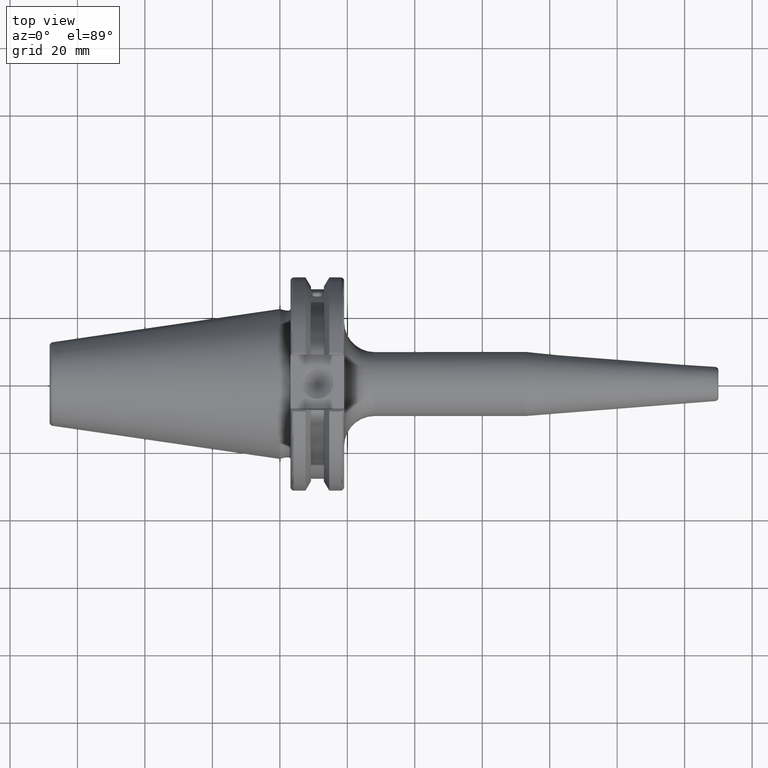
[diagram: clean part render]
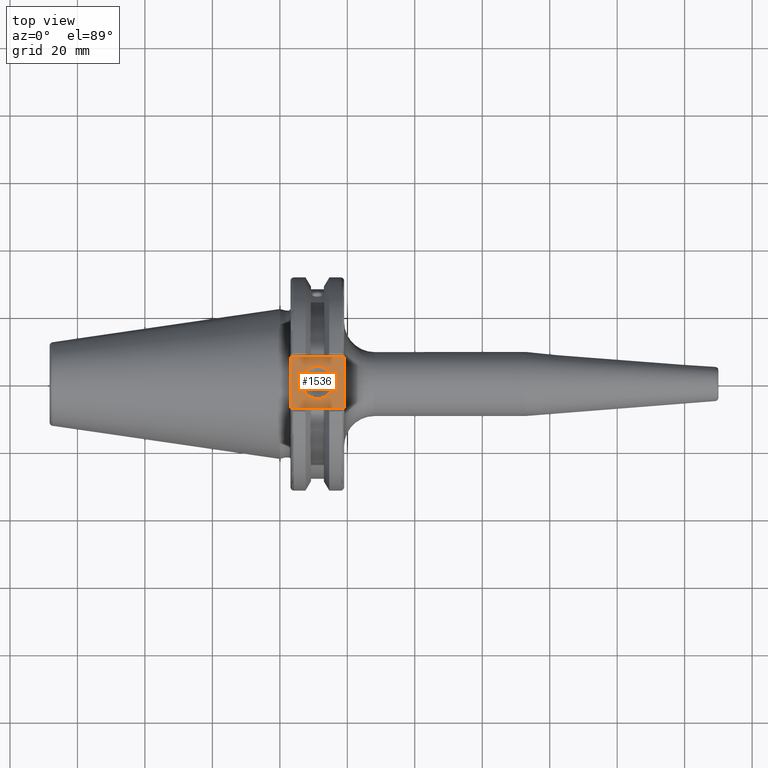
[diagram: same view with one face highlighted and labeled with its STEP entity id]
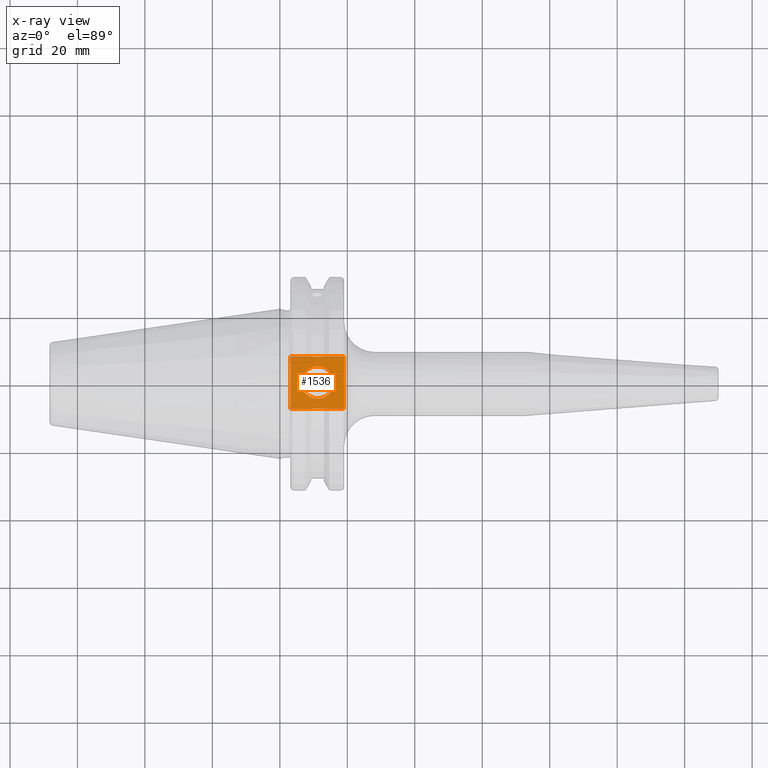
[diagram: x-ray of the same camera — body ghosted, the highlighted face saturated]
A machine part, top view. The second image highlights one B-rep face of the part: STEP entity #1536.
The next image is the same camera in x-ray: the body ghosted, the highlighted face saturated — about 0% of this face is hidden behind the body in this view.
In plain terms, the highlighted planar face has unit normal (0, 0, 1).
Its self-contained STEP definition (entity closure, byte-faithful):
#119=FACE_BOUND('',#534,.T.);
#153=PLANE('',#1730);
#160=LINE('',#2219,#254);
#205=LINE('',#2656,#299);
#233=LINE('',#2885,#327);
#235=LINE('',#2888,#329);
#254=VECTOR('',#1780,10.);
#299=VECTOR('',#2003,10.);
#327=VECTOR('',#2097,10.);
#329=VECTOR('',#2101,10.);
#436=FACE_OUTER_BOUND('',#533,.T.);
#533=EDGE_LOOP('',(#1419,#1420,#1421,#1422));
#534=EDGE_LOOP('',(#1423));
#604=CIRCLE('',#1718,4.7625);
#624=VERTEX_POINT('',#2216);
#625=VERTEX_POINT('',#2218);
#713=VERTEX_POINT('',#2653);
#714=VERTEX_POINT('',#2655);
#760=VERTEX_POINT('',#2924);
#778=EDGE_CURVE('',#624,#625,#160,.T.);
#899=EDGE_CURVE('',#713,#714,#205,.T.);
#962=EDGE_CURVE('',#625,#713,#233,.T.);
#964=EDGE_CURVE('',#714,#624,#235,.T.);
#979=EDGE_CURVE('',#760,#760,#604,.T.);
#1419=ORIENTED_EDGE('',*,*,#962,.F.);
#1420=ORIENTED_EDGE('',*,*,#778,.F.);
#1421=ORIENTED_EDGE('',*,*,#964,.F.);
#1422=ORIENTED_EDGE('',*,*,#899,.F.);
#1423=ORIENTED_EDGE('',*,*,#979,.T.);
#1536=ADVANCED_FACE('',(#436,#119),#153,.T.);
#1718=AXIS2_PLACEMENT_3D('',#2925,#2136,#2137);
#1730=AXIS2_PLACEMENT_3D('',#2938,#2161,#2162);
#1780=DIRECTION('',(0.,-1.,0.));
#2003=DIRECTION('',(0.,1.,0.));
#2097=DIRECTION('',(-1.,1.31581988103722E-16,0.));
#2101=DIRECTION('',(1.,0.,0.));
#2136=DIRECTION('center_axis',(0.,0.,-1.));
#2137=DIRECTION('ref_axis',(1.,0.,0.));
#2161=DIRECTION('center_axis',(0.,0.,1.));
#2162=DIRECTION('ref_axis',(1.,0.,0.));
#2216=CARTESIAN_POINT('',(19.05,7.69,25.));
#2218=CARTESIAN_POINT('',(19.05,-7.69,25.));
#2219=CARTESIAN_POINT('',(19.05,0.,25.));
#2653=CARTESIAN_POINT('',(3.175,-7.68999999999999,25.));
#2655=CARTESIAN_POINT('',(3.175,7.69,25.));
#2656=CARTESIAN_POINT('',(3.175,15.875,25.));
#2885=CARTESIAN_POINT('',(9.44125,-7.69,25.));
#2888=CARTESIAN_POINT('',(17.87875,7.69,25.));
#2924=CARTESIAN_POINT('',(6.3716,-5.83238038093927E-16,25.));
#2925=CARTESIAN_POINT('Origin',(11.1341,0.,25.));
#2938=CARTESIAN_POINT('Origin',(15.7075,0.,25.));